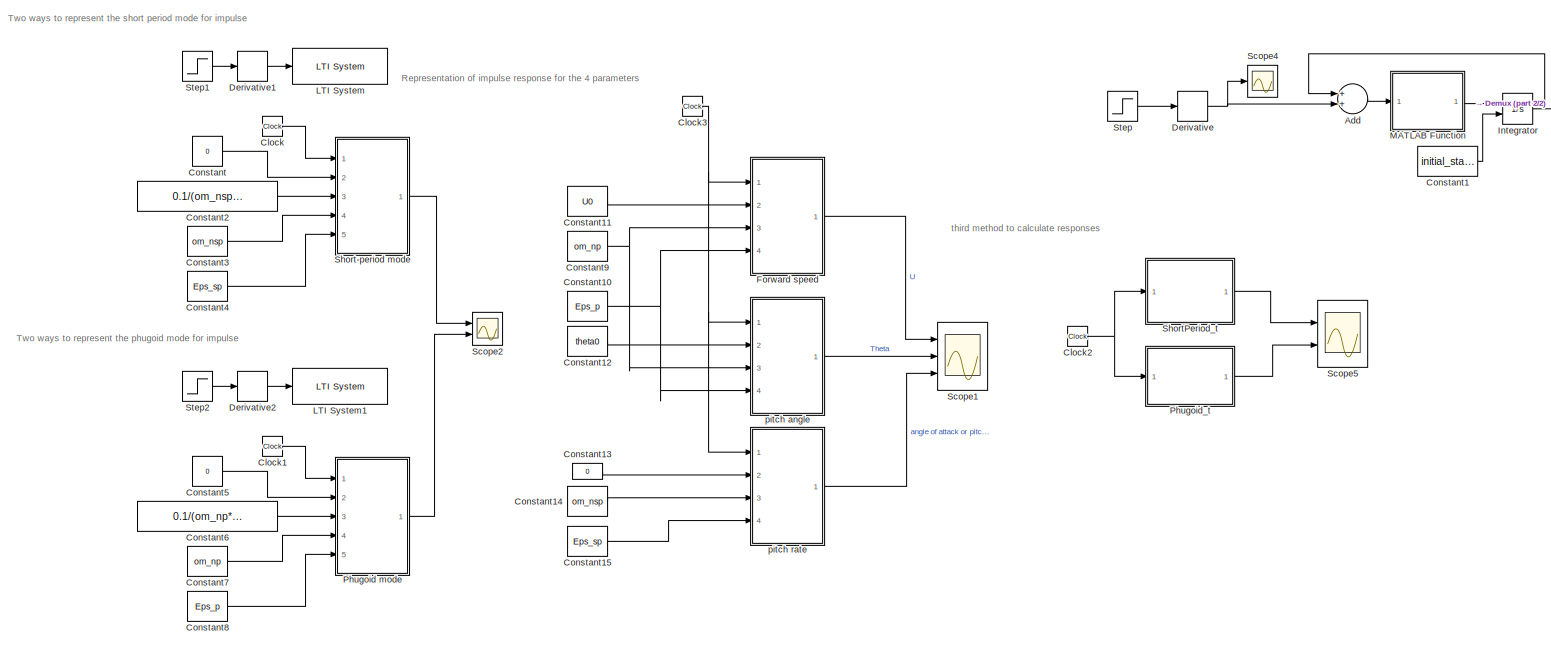
[diagram: root canvas - part 1/2, most of the canvas]
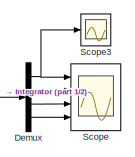
[diagram: root canvas - part 2/2, top right region]
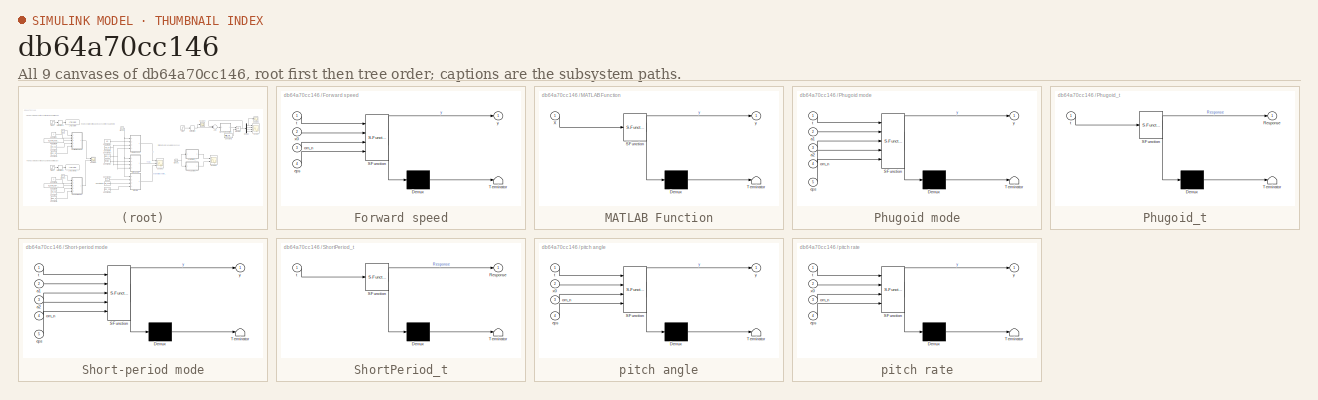
[diagram: thumbnail index - all 9 canvases of the model, root first then tree order]
MODEL slx_db64a70cc146
KIND model
CONFIG AbsTol = auto
CONFIG EnableMultiTasking = off
CONFIG FixedStep = 0.01
CONFIG MaxStep = auto
CONFIG MinStep = auto
CONFIG RelTol = 1e-3
CONFIG SampleTimeConstraint = Unconstrained
CONFIG Solver = FixedStepAuto
CONFIG SolverName = FixedStepAuto
CONFIG StartTime = 0.0
CONFIG StopTime = 100
BLOCK [Sum] Add
  InputSameDT = off
  OutDataTypeStr = Inherit: Inherit via internal rule
  Ports = [2, 1]
  SaturateOnIntegerOverflow = off
BLOCK [Clock] Clock
BLOCK [Clock] Clock1
BLOCK [Clock] Clock2
BLOCK [Clock] Clock3
BLOCK [Constant] Constant
  Value = 0
BLOCK [Constant] Constant1
  Value = initial_state
BLOCK [Constant] Constant10
  Value = Eps_p
BLOCK [Constant] Constant11
  Value = U0
BLOCK [Constant] Constant12
  Value = theta0
BLOCK [Constant] Constant13
  Value = 0
BLOCK [Constant] Constant14
  Value = om_nsp
BLOCK [Constant] Constant15
  Value = Eps_sp
BLOCK [Constant] Constant2
  Value = 0.1/(om_nsp*sqrt(1-Eps_sp^2))
BLOCK [Constant] Constant3
  Value = om_nsp
BLOCK [Constant] Constant4
  Value = Eps_sp
BLOCK [Constant] Constant5
  Value = 0
BLOCK [Constant] Constant6
  Value = 0.1/(om_np*sqrt(1-Eps_p^2))
BLOCK [Constant] Constant7
  Value = om_np
BLOCK [Constant] Constant8
  Value = Eps_p
BLOCK [Constant] Constant9
  Value = om_np
BLOCK [Demux] Demux
  DisplayOption = bar
  Ports = [1, 4]
BLOCK [Derivative] Derivative
BLOCK [Derivative] Derivative1
  Commented = on
BLOCK [Derivative] Derivative2
  Commented = on
BLOCK [SubSystem] Forward speed
  ErrorFcn = Stateflow.Translate.translate
  PermitHierarchicalResolution = ExplicitOnly
  Ports = [4, 1]
  RequestExecContextInheritance = off
  SFBlockType = MATLAB Function
  TreatAsAtomicUnit = on
BLOCK [Demux] Forward speed/ Demux 
  Outputs = 1
  Ports = [1, 1]
BLOCK [S-Function] Forward speed/ SFunction 
  EnableBusSupport = on
  FunctionName = sf_sfun
  PortCounts = [4 2]
  Ports = [4, 2]
  SFcnIsStateOwnerBlock = off
  SFunctionDeploymentMode = off
  Tag = Stateflow S-Function DM_simulink 4
BLOCK [Terminator] Forward speed/ Terminator 
BLOCK [Inport] Forward speed/eps
  IconDisplay = Port number
  Port = 4
BLOCK [Inport] Forward speed/om_n
  IconDisplay = Port number
  Port = 3
BLOCK [Inport] Forward speed/t
  IconDisplay = Port number
BLOCK [Inport] Forward speed/x0
  IconDisplay = Port number
  Port = 2
BLOCK [Outport] Forward speed/y
  IconDisplay = Port number
BLOCK [Integrator] Integrator
  InitialConditionSource = external
  Ports = [2, 1]
BLOCK [Reference] LTI System  REF=cstblocks/LTI System
  Commented = on
  Ports = [1, 1]
  SourceBlock = cstblocks/LTI System
  SourceProductBaseCode = CT
  SourceProductName = Control System Toolbox
  SourceType = LTI Block
BLOCK [Reference] LTI System1  REF=cstblocks/LTI System
  Commented = on
  Ports = [1, 1]
  SourceBlock = cstblocks/LTI System
  SourceProductBaseCode = CT
  SourceProductName = Control System Toolbox
  SourceType = LTI Block
BLOCK [SubSystem] MATLAB Function
  ErrorFcn = Stateflow.Translate.translate
  PermitHierarchicalResolution = ExplicitOnly
  Ports = [1, 1]
  RequestExecContextInheritance = off
  SFBlockType = MATLAB Function
  TreatAsAtomicUnit = on
BLOCK [Demux] MATLAB Function/ Demux 
  Outputs = 1
  Ports = [1, 1]
BLOCK [S-Function] MATLAB Function/ SFunction 
  EnableBusSupport = on
  FunctionName = sf_sfun
  Parameters = matrix_A
  PortCounts = [1 2]
  Ports = [1, 2]
  SFcnIsStateOwnerBlock = off
  SFunctionDeploymentMode = off
  Tag = Stateflow S-Function DM_simulink 2
BLOCK [Terminator] MATLAB Function/ Terminator 
BLOCK [Inport] MATLAB Function/X
  IconDisplay = Port number
BLOCK [Outport] MATLAB Function/y
  IconDisplay = Port number
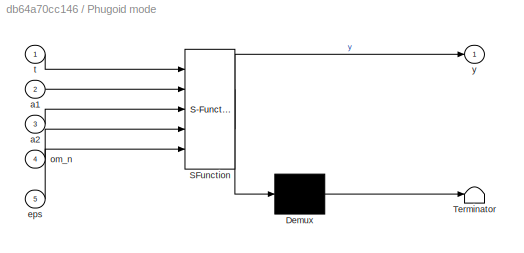
BLOCK [SubSystem] Phugoid mode
  ErrorFcn = Stateflow.Translate.translate
  PermitHierarchicalResolution = ExplicitOnly
  Ports = [5, 1]
  RequestExecContextInheritance = off
  SFBlockType = MATLAB Function
  TreatAsAtomicUnit = on
BLOCK [Demux] Phugoid mode/ Demux 
  Outputs = 1
  Ports = [1, 1]
BLOCK [S-Function] Phugoid mode/ SFunction 
  EnableBusSupport = on
  FunctionName = sf_sfun
  PortCounts = [5 2]
  Ports = [5, 2]
  SFcnIsStateOwnerBlock = off
  SFunctionDeploymentMode = off
  Tag = Stateflow S-Function DM_simulink 3
BLOCK [Terminator] Phugoid mode/ Terminator 
BLOCK [Inport] Phugoid mode/a1
  IconDisplay = Port number
  Port = 2
BLOCK [Inport] Phugoid mode/a2
  IconDisplay = Port number
  Port = 3
BLOCK [Inport] Phugoid mode/eps
  IconDisplay = Port number
  Port = 5
BLOCK [Inport] Phugoid mode/om_n
  IconDisplay = Port number
  Port = 4
BLOCK [Inport] Phugoid mode/t
  IconDisplay = Port number
BLOCK [Outport] Phugoid mode/y
  IconDisplay = Port number
BLOCK [SubSystem] Phugoid_t
  ErrorFcn = Stateflow.Translate.translate
  PermitHierarchicalResolution = ExplicitOnly
  Ports = [1, 1]
  RequestExecContextInheritance = off
  SFBlockType = MATLAB Function
  TreatAsAtomicUnit = on
BLOCK [Demux] Phugoid_t/ Demux 
  Outputs = 1
  Ports = [1, 1]
BLOCK [S-Function] Phugoid_t/ SFunction 
  EnableBusSupport = on
  FunctionName = sf_sfun
  PortCounts = [1 2]
  Ports = [1, 2]
  SFcnIsStateOwnerBlock = off
  SFunctionDeploymentMode = off
  Tag = Stateflow S-Function DM_simulink 7
BLOCK [Terminator] Phugoid_t/ Terminator 
BLOCK [Outport] Phugoid_t/Response
  IconDisplay = Port number
BLOCK [Inport] Phugoid_t/t
  IconDisplay = Port number
BLOCK [Scope] Scope
  Floating = off
  NumInputPorts = 4
  Ports = [4]
  ScopeSpecificationString = Simulink.scopes.TimeScopeBlockCfg('CurrentConfiguration', extmgr.ConfigurationSet(extmgr.Configuration('Core','General UI',true),extmgr.Configuration('Core','Source UI',true),extmgr.Configuration('Sources','WiredSimulink',true),extmgr.Configuration('Visuals','Time Domain',true,'SerializedDisplays',{struct('MinYLimReal','-0.01357','MaxYLimReal','0.00151','YLabelReal','','MinYLimMag','0.00000','MaxY...<+3414ch>
BLOCK [Scope] Scope1
  Floating = off
  NumInputPorts = 3
  Ports = [3]
  ScopeSpecificationString = Simulink.scopes.TimeScopeBlockCfg('CurrentConfiguration', extmgr.ConfigurationSet(extmgr.Configuration('Core','General UI',true),extmgr.Configuration('Core','Source UI',true),extmgr.Configuration('Sources','WiredSimulink',true,'DataLoggingVariableName','ScopeData1'),extmgr.Configuration('Visuals','Time Domain',true,'SerializedDisplays',{struct('MinYLimReal','-111.10404','MaxYLimReal','118.25617','...<+2771ch>
BLOCK [Scope] Scope2
  Floating = off
  NumInputPorts = 2
  Ports = [2]
  ScopeSpecificationString = Simulink.scopes.TimeScopeBlockCfg('CurrentConfiguration', extmgr.ConfigurationSet(extmgr.Configuration('Core','General UI',true),extmgr.Configuration('Core','Source UI',true),extmgr.Configuration('Sources','WiredSimulink',true,'DataLoggingVariableName','ScopeData1'),extmgr.Configuration('Visuals','Time Domain',true,'SerializedDisplays',{struct('MinYLimReal','-0.03321','MaxYLimReal','0.07694','YLab...<+2056ch>
BLOCK [Scope] Scope3
  Floating = off
  NumInputPorts = 1
  Ports = [1]
  ScopeSpecificationString = Simulink.scopes.TimeScopeBlockCfg('CurrentConfiguration', extmgr.ConfigurationSet(extmgr.Configuration('Core','General UI',true),extmgr.Configuration('Core','Source UI',true),extmgr.Configuration('Sources','WiredSimulink',true,'DataLoggingVariableName','ScopeData2'),extmgr.Configuration('Visuals','Time Domain',true,'SerializedDisplays',{struct('MinYLimReal','-4.48239','MaxYLimReal','2.98896','YLab...<+1399ch>
BLOCK [Scope] Scope4
  Floating = off
  NumInputPorts = 1
  Ports = [1]
  ScopeSpecificationString = Simulink.scopes.TimeScopeBlockCfg('CurrentConfiguration', extmgr.ConfigurationSet(extmgr.Configuration('Core','General UI',true),extmgr.Configuration('Core','Source UI',true),extmgr.Configuration('Sources','WiredSimulink',true,'DataLoggingVariableName','ScopeData3'),extmgr.Configuration('Visuals','Time Domain',true,'SerializedDisplays',{struct('MinYLimReal','-12.5','MaxYLimReal','112.5','YLabelRea...<+1435ch>
BLOCK [Scope] Scope5
  Floating = off
  NumInputPorts = 2
  Ports = [2]
  ScopeSpecificationString = Simulink.scopes.TimeScopeBlockCfg('CurrentConfiguration', extmgr.ConfigurationSet(extmgr.Configuration('Core','General UI',true),extmgr.Configuration('Core','Source UI',true),extmgr.Configuration('Sources','WiredSimulink',true,'DataLoggingVariableName','ScopeData2'),extmgr.Configuration('Visuals','Time Domain',true,'SerializedDisplays',{struct('MinYLimReal','-0.33208','MaxYLimReal','0.7694','YLabe...<+2067ch>
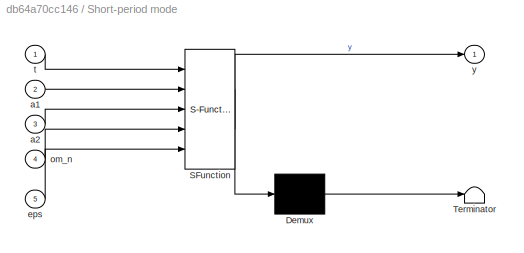
BLOCK [SubSystem] Short-period mode
  ErrorFcn = Stateflow.Translate.translate
  PermitHierarchicalResolution = ExplicitOnly
  Ports = [5, 1]
  RequestExecContextInheritance = off
  SFBlockType = MATLAB Function
  TreatAsAtomicUnit = on
BLOCK [Demux] Short-period mode/ Demux 
  Outputs = 1
  Ports = [1, 1]
BLOCK [S-Function] Short-period mode/ SFunction 
  EnableBusSupport = on
  FunctionName = sf_sfun
  PortCounts = [5 2]
  Ports = [5, 2]
  SFcnIsStateOwnerBlock = off
  SFunctionDeploymentMode = off
  Tag = Stateflow S-Function DM_simulink 1
BLOCK [Terminator] Short-period mode/ Terminator 
BLOCK [Inport] Short-period mode/a1
  IconDisplay = Port number
  Port = 2
BLOCK [Inport] Short-period mode/a2
  IconDisplay = Port number
  Port = 3
BLOCK [Inport] Short-period mode/eps
  IconDisplay = Port number
  Port = 5
BLOCK [Inport] Short-period mode/om_n
  IconDisplay = Port number
  Port = 4
BLOCK [Inport] Short-period mode/t
  IconDisplay = Port number
BLOCK [Outport] Short-period mode/y
  IconDisplay = Port number
BLOCK [SubSystem] ShortPeriod_t
  ErrorFcn = Stateflow.Translate.translate
  PermitHierarchicalResolution = ExplicitOnly
  Ports = [1, 1]
  RequestExecContextInheritance = off
  SFBlockType = MATLAB Function
  TreatAsAtomicUnit = on
BLOCK [Demux] ShortPeriod_t/ Demux 
  Outputs = 1
  Ports = [1, 1]
BLOCK [S-Function] ShortPeriod_t/ SFunction 
  EnableBusSupport = on
  FunctionName = sf_sfun
  PortCounts = [1 2]
  Ports = [1, 2]
  SFcnIsStateOwnerBlock = off
  SFunctionDeploymentMode = off
  Tag = Stateflow S-Function DM_simulink 5
BLOCK [Terminator] ShortPeriod_t/ Terminator 
BLOCK [Outport] ShortPeriod_t/Response
  IconDisplay = Port number
BLOCK [Inport] ShortPeriod_t/t
  IconDisplay = Port number
BLOCK [Step] Step
  After = [1;0;0;0]
  Before = [0;0;0;0]
  SampleTime = 0
  Time = 0.01
BLOCK [Step] Step1
  Commented = on
  SampleTime = 0
BLOCK [Step] Step2
  Commented = on
  SampleTime = 0
BLOCK [SubSystem] pitch angle
  ErrorFcn = Stateflow.Translate.translate
  PermitHierarchicalResolution = ExplicitOnly
  Ports = [4, 1]
  RequestExecContextInheritance = off
  SFBlockType = MATLAB Function
  TreatAsAtomicUnit = on
BLOCK [Demux] pitch angle/ Demux 
  Outputs = 1
  Ports = [1, 1]
BLOCK [S-Function] pitch angle/ SFunction 
  EnableBusSupport = on
  FunctionName = sf_sfun
  PortCounts = [4 2]
  Ports = [4, 2]
  SFcnIsStateOwnerBlock = off
  SFunctionDeploymentMode = off
  Tag = Stateflow S-Function DM_simulink 6
BLOCK [Terminator] pitch angle/ Terminator 
BLOCK [Inport] pitch angle/eps
  IconDisplay = Port number
  Port = 4
BLOCK [Inport] pitch angle/om_n
  IconDisplay = Port number
  Port = 3
BLOCK [Inport] pitch angle/t
  IconDisplay = Port number
BLOCK [Inport] pitch angle/x0
  IconDisplay = Port number
  Port = 2
BLOCK [Outport] pitch angle/y
  IconDisplay = Port number
BLOCK [SubSystem] pitch rate
  ErrorFcn = Stateflow.Translate.translate
  PermitHierarchicalResolution = ExplicitOnly
  Ports = [4, 1]
  RequestExecContextInheritance = off
  SFBlockType = MATLAB Function
  TreatAsAtomicUnit = on
BLOCK [Demux] pitch rate/ Demux 
  Outputs = 1
  Ports = [1, 1]
BLOCK [S-Function] pitch rate/ SFunction 
  EnableBusSupport = on
  FunctionName = sf_sfun
  PortCounts = [4 2]
  Ports = [4, 2]
  SFcnIsStateOwnerBlock = off
  SFunctionDeploymentMode = off
  Tag = Stateflow S-Function DM_simulink 8
BLOCK [Terminator] pitch rate/ Terminator 
BLOCK [Inport] pitch rate/eps
  IconDisplay = Port number
  Port = 4
BLOCK [Inport] pitch rate/om_n
  IconDisplay = Port number
  Port = 3
BLOCK [Inport] pitch rate/t
  IconDisplay = Port number
BLOCK [Inport] pitch rate/x0
  IconDisplay = Port number
  Port = 2
BLOCK [Outport] pitch rate/y
  IconDisplay = Port number
ANNOTATION (root): Representation of impulse response for the 4 parameters
ANNOTATION (root): Two ways to represent the phugoid mode for impulse
ANNOTATION (root): Two ways to represent the short period mode for impulse
ANNOTATION (root): third method to calculate responses
LINE Add:1 -> MATLAB Function:1
LINE Clock1:1 -> Phugoid mode:1
NET Clock2:1 -> Phugoid_t:1, ShortPeriod_t:1
NET Clock3:1 -> Forward speed:1, pitch angle:1, pitch rate:1
LINE Clock:1 -> Short-period mode:1
NET Constant10:1 -> Forward speed:4, pitch angle:4
LINE Constant11:1 -> Forward speed:2
LINE Constant12:1 -> pitch angle:2
LINE Constant13:1 -> pitch rate:2
LINE Constant14:1 -> pitch rate:3
LINE Constant15:1 -> pitch rate:4
LINE Constant1:1 -> Integrator:2
LINE Constant2:1 -> Short-period mode:3
LINE Constant3:1 -> Short-period mode:4
LINE Constant4:1 -> Short-period mode:5
LINE Constant5:1 -> Phugoid mode:2
LINE Constant6:1 -> Phugoid mode:3
LINE Constant7:1 -> Phugoid mode:4
LINE Constant8:1 -> Phugoid mode:5
NET Constant9:1 -> Forward speed:3, pitch angle:3
LINE Constant:1 -> Short-period mode:2
NET Demux:1 -> Scope3:1, Scope:1
LINE Demux:2 -> Scope:2
LINE Demux:3 -> Scope:3
LINE Demux:4 -> Scope:4
LINE Derivative1:1 -> LTI System:1
LINE Derivative2:1 -> LTI System1:1
NET Derivative:1 -> Add:2, Scope4:1
LINE Forward speed:1 -> Scope1:1
NET Integrator:1 -> Add:1, Demux:1
LINE MATLAB Function:1 -> Integrator:1
LINE Phugoid mode:1 -> Scope2:2
LINE Phugoid_t:1 -> Scope5:2
LINE Short-period mode:1 -> Scope2:1
LINE ShortPeriod_t:1 -> Scope5:1
LINE Step1:1 -> Derivative1:1
LINE Step2:1 -> Derivative2:1
LINE Step:1 -> Derivative:1
LINE pitch angle:1 -> Scope1:2
LINE pitch rate:1 -> Scope1:3
note: NET lines group one-source signal fan-out (src -> all destinations, sorted); 1:1 wires keep LINE
CHART Short-period mode states=1 transitions=1
  STATE_LABEL 'eML_blk_kernel()'
  STATE_LABEL 'SCRIPT:\nfunction y = fcn(t, a1, a2, om_n, eps)\n\ny = exp(-eps*om_n*t) * (a1*cos(om_n*sqrt(1-eps^2)*t) + a2*sin(om_n*sqrt(1-eps^2)*t));\n'
CHART MATLAB Function states=1 transitions=1
  STATE_LABEL 'eML_blk_kernel()'
  STATE_LABEL 'SCRIPT:\nfunction y = fcn(X, matrix_A)\n\ny = matrix_A*X;\n'
CHART Phugoid mode states=1 transitions=1
  STATE_LABEL 'eML_blk_kernel()'
  STATE_LABEL 'SCRIPT:\nfunction y = fcn(t, a1, a2, om_n, eps)\n\ny = exp(-eps*om_n*t) * (a1*cos(om_n*sqrt(1-eps^2)*t) + a2*sin(om_n*sqrt(1-eps^2)*t));\n'
CHART Forward speed states=1 transitions=1
  STATE_LABEL 'eML_blk_kernel()'
  STATE_LABEL 'SCRIPT:\nfunction y = fcn(t, x0, om_n, eps)\na1 = x0;\na2 = (1 + a1*om_n*eps)/(om_n*sqrt(1-eps^2));\ny = exp(-eps*om_n*t) * (a1*cos(om_n*sqrt(1-eps^2)*t) + a2*sin(om_n*sqrt(1-eps^2)*t));\n'  <repeated x3 — deduplicated; at blocks: Forward speed, pitch angle, pitch rate>
CHART ShortPeriod_t states=1 transitions=1
  STATE_LABEL 'eML_blk_kernel()'
  STATE_LABEL 'SCRIPT:\nfunction Response = ShortPeriod_t(t)\n%#codegen\n\n%    This function was generated by the Symbolic Math Toolbox version 8.3.\n%    27-Apr-2020 23:00:56\n\nt2 = 1.910922889758482e+14;\nResponse = t2.*exp(t.*(-3.23507389964075e-1)).*sin(t.*t2.*4.884981308350689e-15).*5.605969989267096e-15;\n'
CHART pitch angle states=1 transitions=1
  STATE_LABEL 'eML_blk_kernel()'
CHART Phugoid_t states=1 transitions=1
  STATE_LABEL 'eML_blk_kernel()'
  STATE_LABEL 'SCRIPT:\nfunction Response = Phugoid_t(t)\n%#codegen\n\n%    This function was generated by the Symbolic Math Toolbox version 8.3.\n%    27-Apr-2020 23:00:59\n\nt2 = 1.051828182895945e+16;\nResponse = t2.*exp(t.*(-2.491521208616993e-3)).*sin(t.*t2.*9.540979117872439e-18).*9.473652451979431e-16;\n'
CHART pitch rate states=1 transitions=1
  STATE_LABEL 'eML_blk_kernel()'
